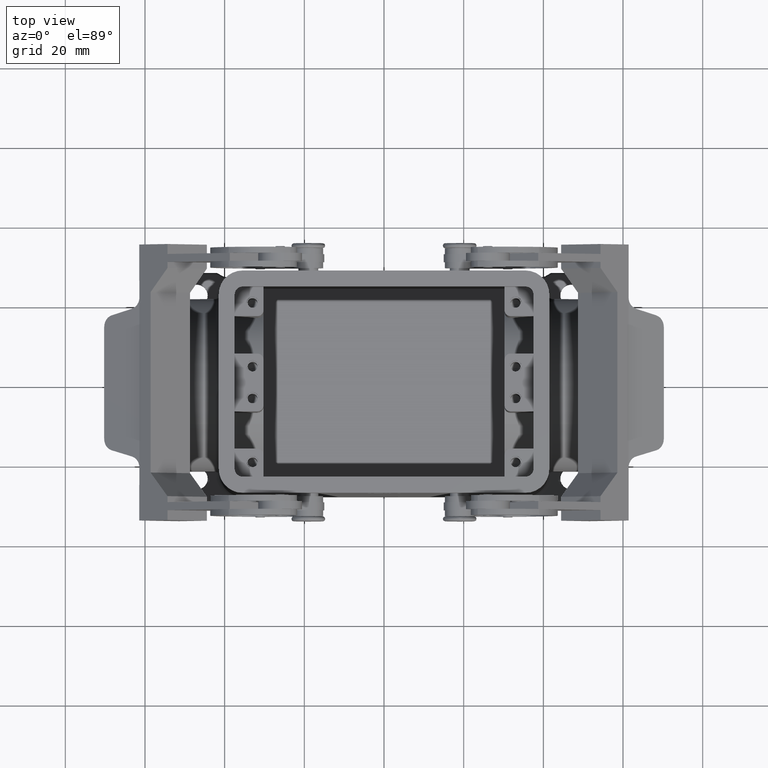
[diagram: clean part render]
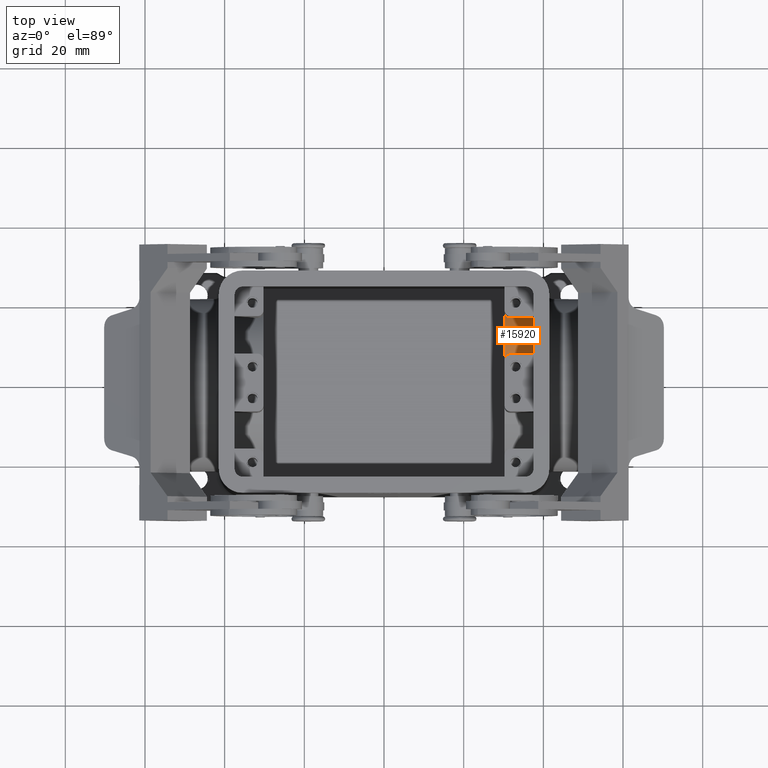
[diagram: same view with one face highlighted and labeled with its STEP entity id]
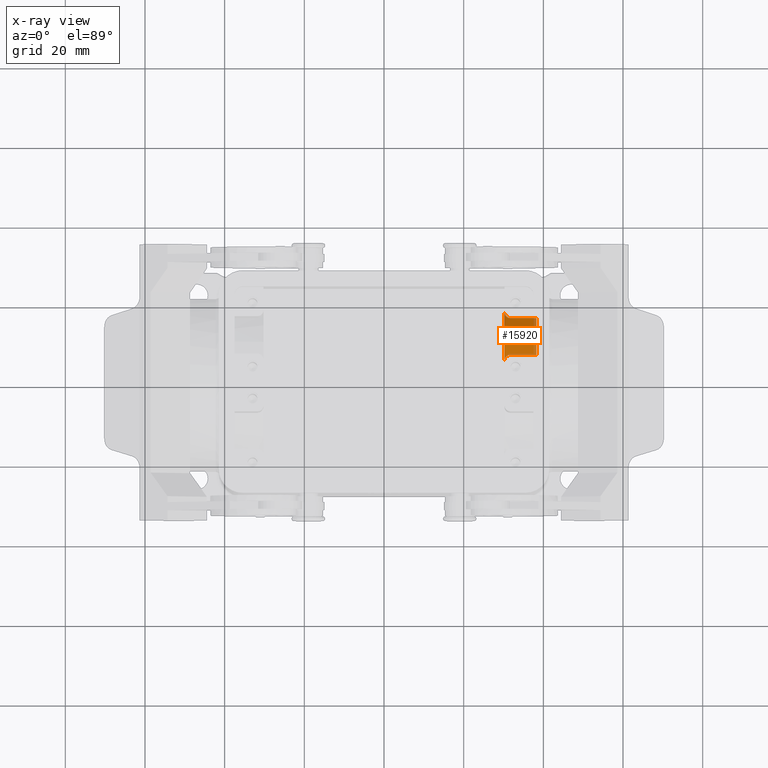
[diagram: x-ray of the same camera — body ghosted, the highlighted face saturated]
A machine part, top view. The second image highlights one B-rep face of the part: STEP entity #15920.
The next image is the same camera in x-ray: the body ghosted, the highlighted face saturated — about 13% of this face is hidden behind the body in this view.
In plain terms, the highlighted cylindrical surface (partial cylindrical patch) has radius 21.75 mm, axis along (-1, 0, 0).
Its self-contained STEP definition (entity closure, byte-faithful):
#15769=CARTESIAN_POINT('',(30.250000000000004,5.750000000000002,-4.023823036596981));
#15770=VERTEX_POINT('',#15769);
#15777=CARTESIAN_POINT('',(30.250000000000000,18.149999999999999,-13.015009386737102));
#15778=VERTEX_POINT('',#15777);
#15779=CARTESIAN_POINT('',(30.250000000000000,0.0,-25.000000000000007));
#15780=DIRECTION('',(1.0,0.0,0.0));
#15781=DIRECTION('',(0.0,-0.459770114942529,0.888037972952584));
#15782=AXIS2_PLACEMENT_3D('',#15779,#15780,#15781);
#15783=CIRCLE('',#15782,21.750000000000000);
#15784=EDGE_CURVE('',#15778,#15770,#15783,.T.);
#15857=CARTESIAN_POINT('',(53.000000000000007,0.0,-25.000000000000007));
#15858=DIRECTION('',(-1.0,0.0,0.0));
#15859=DIRECTION('',(0.0,-0.459770114942529,0.888037972952584));
#15860=AXIS2_PLACEMENT_3D('',#15857,#15858,#15859);
#15861=CYLINDRICAL_SURFACE('',#15860,21.750000000000000);
#15862=CARTESIAN_POINT('',(31.750000000000007,16.649999999999995,-11.005715452371287));
#15863=VERTEX_POINT('',#15862);
#15864=CARTESIAN_POINT('',(30.250000000000000,18.149999999999999,-13.015009386737102));
#15865=CARTESIAN_POINT('',(30.250000000000000,17.967339492808410,-12.738389378219237));
#15866=CARTESIAN_POINT('',(30.284521894626536,17.761139201414295,-12.441225619492931));
#15867=CARTESIAN_POINT('',(30.458937753458560,17.355017359500401,-11.885723366080930));
#15868=CARTESIAN_POINT('',(30.597803175775667,17.155083203931984,-11.627071666918427));
#15869=CARTESIAN_POINT('',(30.909329044630507,16.899474777040965,-11.307248051068374));
#15870=CARTESIAN_POINT('',(31.052143617559747,16.810631817612148,-11.198740425454215));
#15871=CARTESIAN_POINT('',(31.298619873280941,16.716827320931174,-11.085526027152433));
#15872=CARTESIAN_POINT('',(31.386101129528402,16.691929990564702,-11.055731572084435));
#15873=CARTESIAN_POINT('',(31.566048501366453,16.658517500275142,-11.015830351805370));
#15874=CARTESIAN_POINT('',(31.658512378627158,16.649999999999995,-11.005715452371287));
#15875=CARTESIAN_POINT('',(31.750000000000007,16.649999999999995,-11.005715452371287));
#15876=B_SPLINE_CURVE_WITH_KNOTS('',3,(#15864,#15865,#15866,#15867,#15868,#15869,#15870,#15871,#15872,#15873,#15874,#15875),.UNSPECIFIED.,.F.,.U.,(4,2,2,2,2,4),(0.352205802067943,0.451651838188002,0.551097874308061,0.605990447131771,0.633436733543626,0.660883019955481),.UNSPECIFIED.);
#15877=EDGE_CURVE('',#15778,#15863,#15876,.T.);
#15878=ORIENTED_EDGE('',*,*,#15877,.F.);
#15879=ORIENTED_EDGE('',*,*,#15784,.T.);
#15880=CARTESIAN_POINT('',(31.750000000000007,7.250000000000005,-4.493903345590136));
#15881=VERTEX_POINT('',#15880);
#15882=CARTESIAN_POINT('',(31.750000000000007,7.250000000000005,-4.493903345590136));
#15883=CARTESIAN_POINT('',(31.561756127180210,7.250000000000005,-4.493903345590136));
#15884=CARTESIAN_POINT('',(31.361849877227105,7.212357664273617,-4.480478631093749));
#15885=CARTESIAN_POINT('',(30.995925909606413,7.061687008556338,-4.428139685175381));
#15886=CARTESIAN_POINT('',(30.829849889716808,6.948732164484165,-4.389421776979606));
#15887=CARTESIAN_POINT('',(30.561870752437301,6.685567598319464,-4.302517120117264));
#15888=CARTESIAN_POINT('',(30.444239129685201,6.515364095465737,-4.247880669119376));
#15889=CARTESIAN_POINT('',(30.288302622812783,6.142726940823295,-4.134542139061567));
#15890=CARTESIAN_POINT('',(30.250000000000004,5.940251364091118,-4.075974834583454));
#15891=CARTESIAN_POINT('',(30.250000000000004,5.750000000000002,-4.023823036596981));
#15892=B_SPLINE_CURVE_WITH_KNOTS('',3,(#15882,#15883,#15884,#15885,#15886,#15887,#15888,#15889,#15890,#15891),.UNSPECIFIED.,.F.,.U.,(4,2,2,2,4),(0.0,0.056473161845940,0.112946323691879,0.172127277059138,0.231308230426397),.UNSPECIFIED.);
#15893=EDGE_CURVE('',#15881,#15770,#15892,.T.);
#15894=ORIENTED_EDGE('',*,*,#15893,.F.);
#15895=CARTESIAN_POINT('',(38.250000000000000,7.250000000000005,-4.493903345590136));
#15896=VERTEX_POINT('',#15895);
#15897=CARTESIAN_POINT('',(38.250000000000000,7.250000000000005,-4.493903345590136));
#15898=DIRECTION('',(-1.0,0.0,0.0));
#15899=VECTOR('',#15898,6.499999999999993);
#15900=LINE('',#15897,#15899);
#15901=EDGE_CURVE('',#15896,#15881,#15900,.T.);
#15902=ORIENTED_EDGE('',*,*,#15901,.F.);
#15903=CARTESIAN_POINT('',(38.250000000000000,16.649999999999999,-11.005715452371291));
#15904=VERTEX_POINT('',#15903);
#15905=CARTESIAN_POINT('',(38.249999999999993,0.0,-25.000000000000007));
#15906=DIRECTION('',(1.0,0.0,0.0));
#15907=DIRECTION('',(0.0,-0.459770114942529,0.888037972952584));
#15908=AXIS2_PLACEMENT_3D('',#15905,#15906,#15907);
#15909=CIRCLE('',#15908,21.750000000000000);
#15910=EDGE_CURVE('',#15904,#15896,#15909,.T.);
#15911=ORIENTED_EDGE('',*,*,#15910,.F.);
#15912=CARTESIAN_POINT('',(31.750000000000007,16.649999999999995,-11.005715452371287));
#15913=DIRECTION('',(1.0,0.0,0.0));
#15914=VECTOR('',#15913,6.499999999999993);
#15915=LINE('',#15912,#15914);
#15916=EDGE_CURVE('',#15863,#15904,#15915,.T.);
#15917=ORIENTED_EDGE('',*,*,#15916,.F.);
#15918=EDGE_LOOP('',(#15878,#15879,#15894,#15902,#15911,#15917));
#15919=FACE_OUTER_BOUND('',#15918,.T.);
#15920=ADVANCED_FACE('',(#15919),#15861,.T.);